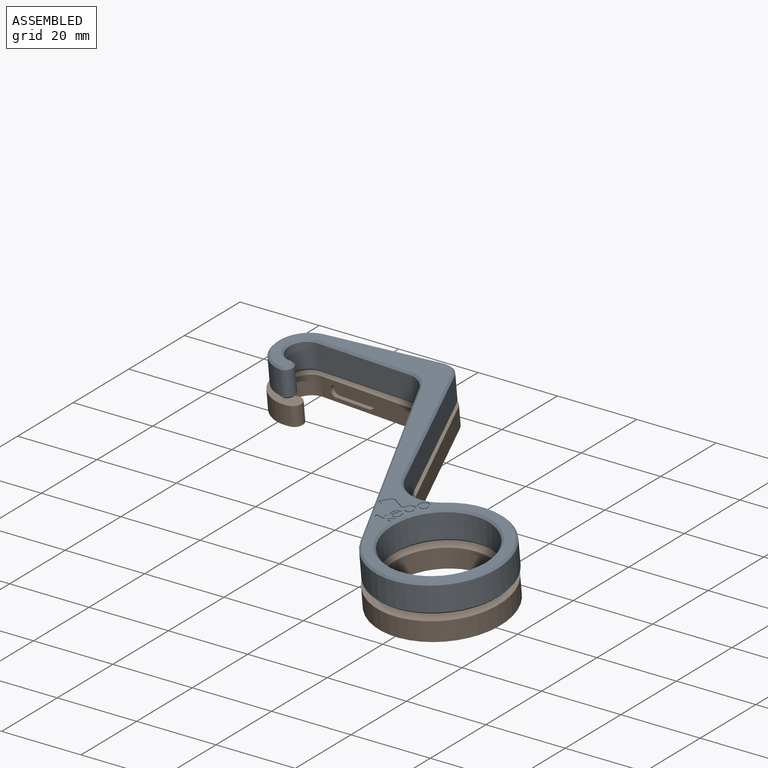
[diagram: assembled view]
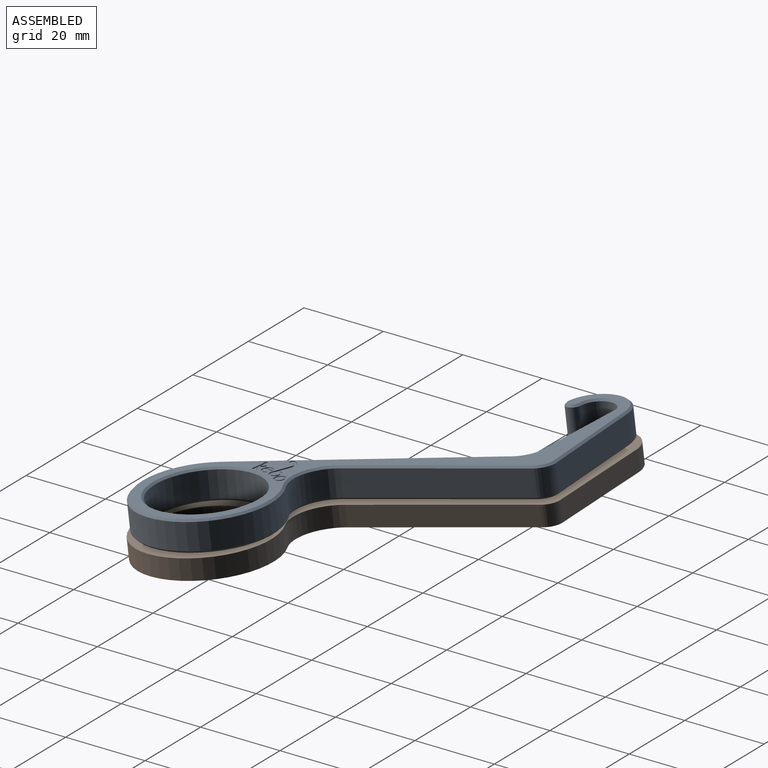
[diagram: assembled view, second angle]
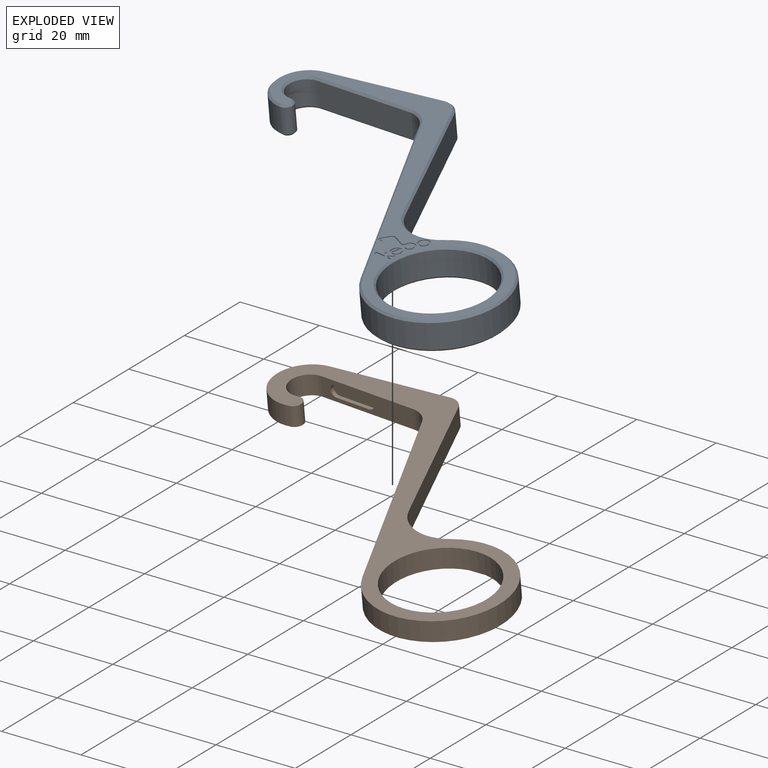
[diagram: exploded view]
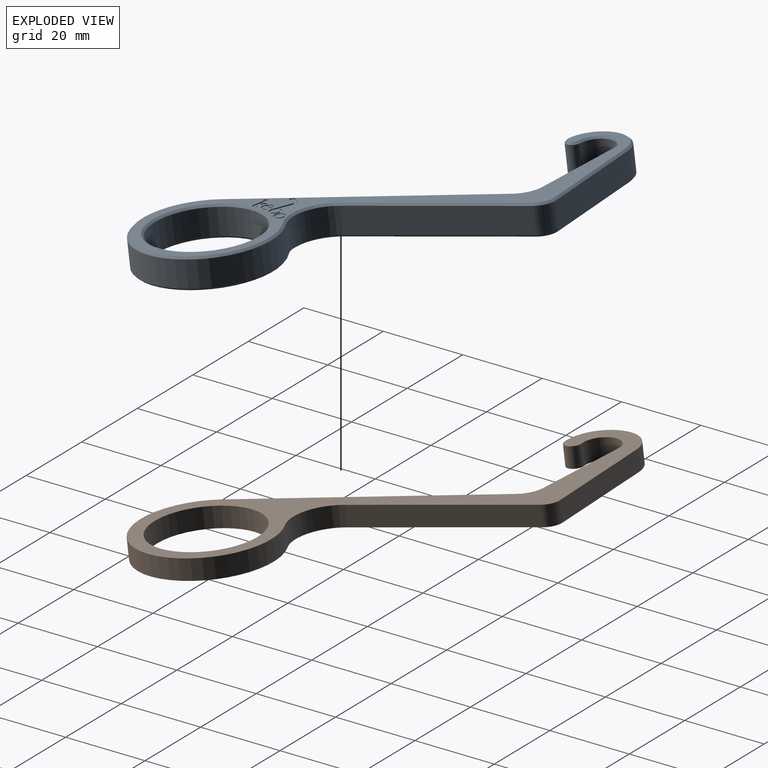
[diagram: exploded view, second angle]
ASSEMBLY  parts=2 mates=2
PART A: 78 faces, bbox 92.9x76.8x7.5 mm
  f0: plane 91.92x75.85mm, normal (0,0,-1), area 694.4mm2, adj f3,f4,f5,f6,f7,f8,f9,f10
  f1: plane 1.99x1.99mm, normal (0,0,1), area 3.1mm2, adj f15
  f2: plane 1.64x0.94mm, normal (0,0,1), area 0.7mm2, adj f16,f17
  f3: cone r=13.25mm half-angle=45deg, axis (0,0,-1), area 58.9mm2, adj f0,f18
  f4: plane 55.78x24.52mm, normal (-0.65,-0.28,-0.71), area 42.8mm2, adj f0,f5,f14,f19
  f5: cone r=16.25mm half-angle=45deg, axis (0,0,1), area 55.6mm2, adj f0,f4,f6,f20
  f6: cone r=9.25mm half-angle=45deg, axis (0,0,-1), area 11.5mm2, adj f0,f5,f7,f21
  f7: plane 38.63x14.79mm, normal (0.66,0.25,-0.71), area 29mm2, adj f0,f6,f8,f22
  f8: cone r=4.27mm half-angle=45deg, axis (0,0,1), area 3.8mm2, adj f0,f7,f9,f23
  f9: plane 28.97x2.56mm, normal (-0.05,0.71,-0.71), area 20.5mm2, adj f0,f8,f10,f24
  f10: cone r=7.71mm half-angle=45deg, axis (0,0,1), area 15.9mm2, adj f0,f9,f11,f25
  f11: cone r=1.63mm half-angle=45deg, axis (0,0,1), area 3.7mm2, adj f0,f10,f12,f26
  f12: cone r=4.55mm half-angle=45deg, axis (0,0,-1), area 10.2mm2, adj f0,f11,f13,f27
  f13: plane 24.6x1.92mm, normal (-0.04,-0.71,-0.71), area 17.4mm2, adj f0,f12,f14,f28
  f14: cone r=6.5mm half-angle=45deg, axis (0,0,-1), area 4.9mm2, adj f0,f4,f13,f29
  f15: cylinder r=1mm len=1.99mm, axis (0,0,-1), area 1.6mm2, adj f1,f30
  f16: cylinder r=1.05mm len=1.64mm, axis (0,0,-1), area 0.5mm2, adj f2,f17,f31
  f17: plane 1.64x0.75mm, normal (0.91,-0.41,0), area 0.5mm2, adj f2,f16,f31
  f18: cylinder r=13mm len=26mm, axis (0,0,1), area 530.9mm2, adj f3,f33
  f19: plane 55.61x24.06mm, normal (-0.92,-0.4,0), area 393.8mm2, adj f4,f20,f29,f34
  f20: cylinder r=16.5mm len=33mm, axis (0,0,1), area 519.3mm2, adj f5,f19,f21,f35
  f21: cylinder r=9mm len=13.05mm, axis (0,0,1), area 102.6mm2, adj f6,f20,f22,f36
  f22: plane 38.45x14.32mm, normal (0.94,0.35,0), area 266.7mm2, adj f7,f21,f23,f37
  f23: cylinder r=4.52mm len=6.5mm, axis (0,0,1), area 37mm2, adj f8,f22,f24,f38
  f24: plane 28.95x6.5mm, normal (-0.07,1,0), area 188.7mm2, adj f9,f23,f25,f39
  f25: cylinder r=7.96mm len=15.81mm, axis (0,0,1), area 151.2mm2, adj f10,f24,f26,f40
  f26: cylinder r=1.88mm len=6.5mm, axis (0,0,1), area 39.2mm2, adj f11,f25,f27,f41
  f27: cylinder r=4.3mm len=8.59mm, axis (0,0,1), area 88.4mm2, adj f12,f26,f28,f42
  f28: plane 24.53x6.5mm, normal (-0.06,-1,0), area 159.7mm2, adj f13,f27,f29,f43
  f29: cylinder r=6.25mm len=6.5mm, axis (0,0,1), area 43.6mm2, adj f14,f19,f28,f44
  f30: plane 2.81x2.81mm, normal (0,0,1), area 3.1mm2, adj f15,f45
  f31: plane 2.82x2.82mm, normal (0,0,1), area 3.3mm2, adj f16,f17,f46,f47,f48,f49
  f32: plane 4.6x2.33mm, normal (0,0,1), area 4.4mm2, adj f50,f51,f52,f53,f54,f55,f56,f57
  f33: cone r=13.25mm half-angle=45deg, axis (0,0,1), area 58.9mm2, adj f18,f63
  f34: plane 55.78x24.52mm, normal (-0.65,-0.28,0.71), area 42.8mm2, adj f19,f35,f44,f63
  f35: cone r=16.25mm half-angle=45deg, axis (0,0,-1), area 55.6mm2, adj f20,f34,f36,f63
  f36: cone r=9.25mm half-angle=45deg, axis (0,0,1), area 11.5mm2, adj f21,f35,f37,f63
  f37: plane 38.63x14.79mm, normal (0.66,0.25,0.71), area 29mm2, adj f22,f36,f38,f63
  f38: cone r=4.27mm half-angle=45deg, axis (0,0,-1), area 3.8mm2, adj f23,f37,f39,f63
  f39: plane 28.97x2.56mm, normal (-0.05,0.71,0.71), area 20.5mm2, adj f24,f38,f40,f63
  f40: cone r=7.71mm half-angle=45deg, axis (0,0,-1), area 15.9mm2, adj f25,f39,f41,f63
  f41: cone r=1.63mm half-angle=45deg, axis (0,0,-1), area 3.7mm2, adj f26,f40,f42,f63
  f42: cone r=4.55mm half-angle=45deg, axis (0,0,1), area 10.2mm2, adj f27,f41,f43,f63
  f43: plane 24.6x1.92mm, normal (-0.04,-0.71,0.71), area 17.4mm2, adj f28,f42,f44,f63
  f44: cone r=6.5mm half-angle=45deg, axis (0,0,1), area 4.9mm2, adj f29,f34,f43,f63
  f45: cylinder r=1.4mm len=2.81mm, axis (0,0,-1), area 2.2mm2, adj f30,f63
  f46: cylinder r=1.05mm len=1.58mm, axis (0,0,-1), area 0.7mm2, adj f31,f47,f49,f63
  f47: plane 0.43x0.25mm, normal (0.94,-0.34,0), area 0.1mm2, adj f31,f46,f48,f63
  f48: cylinder r=1.41mm len=2.82mm, axis (0,0,-1), area 2mm2, adj f31,f47,f49,f63
  f49: plane 2.22x1.01mm, normal (-0.91,0.41,0), area 0.6mm2, adj f31,f46,f48,f63
  f50: plane 0.58x0.25mm, normal (-0.98,0.2,0), area 0.1mm2, adj f32,f51,f62,f63
  f51: plane 3.71x0.75mm, normal (0.2,0.98,0), area 0.9mm2, adj f32,f50,f52,f63
  f52: plane 0.54x0.25mm, normal (-0.98,0.2,0), area 0.1mm2, adj f32,f51,f53,f63
  f53: plane 0.64x0.43mm, normal (0.83,0.55,0), area 0.2mm2, adj f32,f52,f54,f63
  f54: plane 0.57x0.25mm, normal (0.98,-0.2,0), area 0.1mm2, adj f32,f53,f55,f63
  f55: plane 2.26x0.46mm, normal (-0.2,-0.98,0), area 0.6mm2, adj f32,f54,f56,f63
  f56: plane 1.05x0.73mm, normal (0.82,0.57,0), area 0.3mm2, adj f32,f55,f57,f63
  f57: plane 0.45x0.31mm, normal (0.57,-0.82,0), area 0.1mm2, adj f32,f56,f58,f63
  f58: plane 1.14x0.79mm, normal (-0.82,-0.57,0), area 0.3mm2, adj f32,f57,f59,f63
  f59: plane 1.71x0.91mm, normal (0.47,-0.88,0), area 0.5mm2, adj f32,f58,f60,f63
  f60: plane 0.66x0.25mm, normal (-0.98,0.2,0), area 0.2mm2, adj f32,f59,f61,f63
  f61: plane 1.21x0.65mm, normal (-0.47,0.88,0), area 0.3mm2, adj f32,f60,f62,f63
  f62: plane 1.11x0.25mm, normal (-0.2,-0.98,0), area 0.3mm2, adj f32,f50,f61,f63
  f63: plane 91.92x75.85mm, normal (0,0,1), area 668mm2, adj f33,f34,f35,f36,f37,f38,f39,f40
  f64: plane 4.07x2.12mm, normal (0.46,0.89,0), area 1.1mm2, adj f63,f65,f74,f76
  f65: cylinder r=1.44mm len=2.89mm, axis (0,0,-1), area 1.8mm2, adj f63,f64,f66,f76
  f66: cylinder r=0.52mm len=0.7mm, axis (0,0,-1), area 0.2mm2, adj f63,f65,f67,f76
  f67: plane 2.44x1.56mm, normal (-0.54,-0.84,0), area 0.7mm2, adj f63,f66,f68,f76
  f68: cylinder r=1.1mm len=1.2mm, axis (0,0,-1), area 0.3mm2, adj f63,f67,f69,f76
  f69: plane 1.52x1.46mm, normal (0.72,-0.69,0), area 0.5mm2, adj f63,f68,f70,f76
  f70: cylinder r=0.72mm len=1.22mm, axis (0,0,-1), area 0.5mm2, adj f63,f69,f71,f76
  f71: cylinder r=0.19mm len=0.38mm, axis (0,0,-1), area 0.2mm2, adj f63,f70,f72,f76
  f72: cylinder r=0.32mm len=0.58mm, axis (0,0,-1), area 0.2mm2, adj f63,f71,f73,f76
  f73: plane 1.48x1.03mm, normal (-0.57,0.82,0), area 0.5mm2, adj f63,f72,f74,f76
  f74: cylinder r=0.87mm len=0.65mm, axis (0,0,-1), area 0.2mm2, adj f63,f64,f73,f76
  f75: plane 1.96x1.96mm, normal (0,0,1), area 3mm2, adj f77
  f76: plane 8.86x3.28mm, normal (0,0,1), area 8.8mm2, adj f64,f65,f66,f67,f68,f69,f70,f71
  f77: cylinder r=0.98mm len=1.96mm, axis (0,0,-1), area 1.5mm2, adj f75,f76
PART B: 19 faces, bbox 94.5x5x77.8 mm
  f0: cylinder r=5.6mm len=5mm, axis (0,-1,0), area 30.4mm2, adj f1,f11,f12,f13
  f1: plane 57.12x25mm, normal (-0.92,0,-0.4), area 311.8mm2, adj f0,f2,f12,f13
  f2: cylinder r=16.5mm len=33mm, axis (0,-1,0), area 395.5mm2, adj f1,f3,f12,f13
  f3: cylinder r=10mm len=14.09mm, axis (0,-1,0), area 85mm2, adj f2,f4,f12,f13
  f4: plane 39.14x14.9mm, normal (0.93,0,0.36), area 209.4mm2, adj f3,f5,f12,f13
  f5: cylinder r=3.75mm len=5mm, axis (0,-1,0), area 23.7mm2, adj f4,f6,f12,f13
  f6: plane 28.87x5mm, normal (-0.05,0,1), area 144.6mm2, adj f5,f7,f12,f13
  f7: cylinder r=8.6mm len=17.2mm, axis (0,-1,0), area 141.4mm2, adj f6,f8,f12,f13
  f8: cylinder r=2.04mm len=5mm, axis (0,-1,0), area 32mm2, adj f7,f9,f12,f13
  f9: cylinder r=4.52mm len=9.04mm, axis (0,-1,0), area 74.3mm2, adj f8,f11,f12,f13
  f10: cylinder r=13mm len=26mm, axis (0,-1,0), area 408.4mm2, adj f12,f13
  f11: plane 24.55x5mm, normal (-0.07,0,-1), area 90.2mm2, adj f0,f9,f12,f13,f14,f15,f16,f17
  f12: plane 94.49x77.83mm, normal (0,-1,0), area 945.7mm2, adj f0,f1,f2,f3,f4,f5,f6,f7
  f13: plane 94.49x77.83mm, normal (0,1,0), area 945.7mm2, adj f0,f1,f2,f3,f4,f5,f6,f7
  f14: plane 8.67x1.63mm, normal (0,-1,0), area 8.6mm2, adj f11,f15,f17,f18
  f15: cylinder r=1.5mm len=3mm, axis (-0.07,0,-1), area 4.7mm2, adj f11,f14,f16,f18
  f16: plane 8.67x1.63mm, normal (0,1,0), area 8.6mm2, adj f11,f15,f17,f18
  f17: cylinder r=1.5mm len=3mm, axis (-0.07,0,-1), area 4.7mm2, adj f11,f14,f16,f18
  f18: plane 11.59x3mm, normal (-0.07,0,-1), area 32.9mm2, adj f14,f15,f16,f17
PLACE A rot(axis=(1,0,0),7deg) t=(-0.87,-26.3,26.19)mm
PLACE B rot(axis=(-1,0,0),83deg) t=(-55.41,-17.76,26.19)mm
MATE parallel A.f63 <-> B.f13  axis (0,-0.12,0.99) through (-27.05,-0.97,36.87)mm
MATE parallel B.f1 <-> A.f19  axis (-0.92,-0.39,-0.05) through (-28.05,-4.78,25.26)mm
